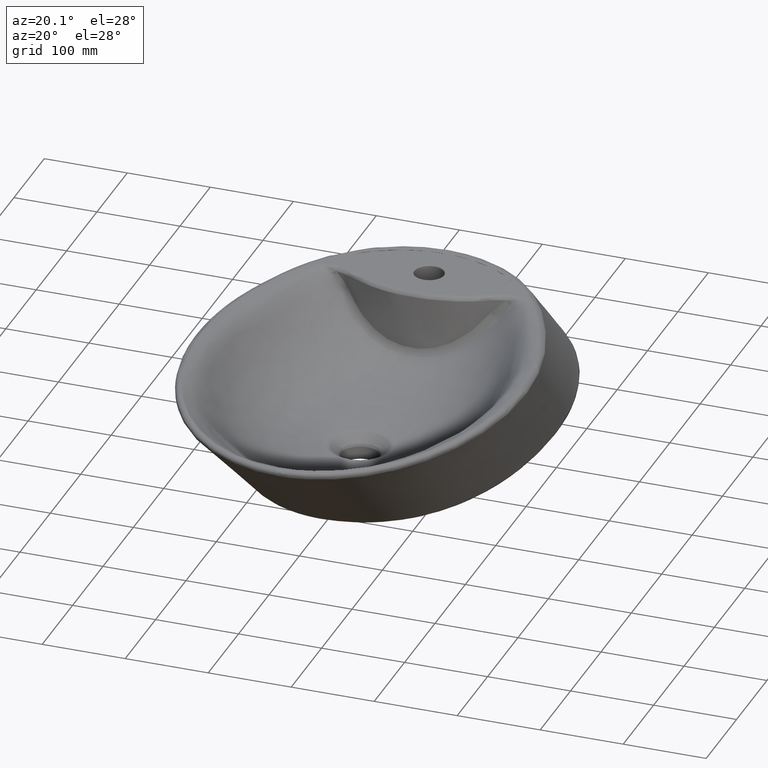
[diagram: clean part render]
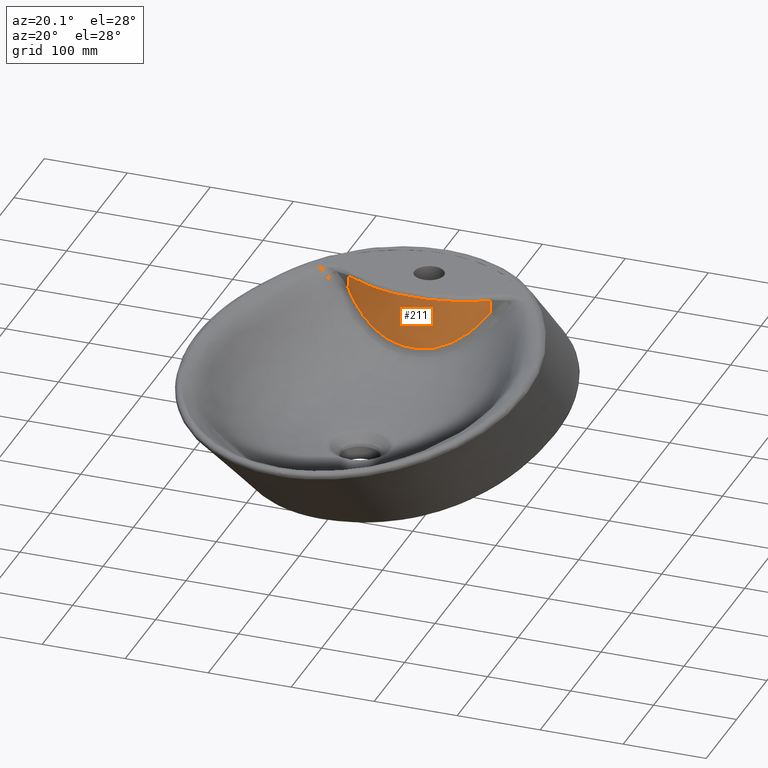
[diagram: same view with one face highlighted and labeled with its STEP entity id]
A machine part, auxiliary view. The second image highlights one B-rep face of the part: STEP entity #211.
In plain terms, the highlighted face is a freeform B-spline surface patch.
Its self-contained STEP definition (entity closure, byte-faithful):
#150=FACE_OUTER_BOUND('',#386,.T.);
#180=B_SPLINE_SURFACE_WITH_KNOTS('',3,3,((#9435,#9436,#9437,#9438,#9439,
#9440,#9441,#9442,#9443,#9444,#9445,#9446,#9447,#9448,#9449,#9450,#9451,
#9452,#9453,#9454,#9455,#9456),(#9457,#9458,#9459,#9460,#9461,#9462,#9463,
#9464,#9465,#9466,#9467,#9468,#9469,#9470,#9471,#9472,#9473,#9474,#9475,
#9476,#9477,#9478),(#9479,#9480,#9481,#9482,#9483,#9484,#9485,#9486,#9487,
#9488,#9489,#9490,#9491,#9492,#9493,#9494,#9495,#9496,#9497,#9498,#9499,
#9500),(#9501,#9502,#9503,#9504,#9505,#9506,#9507,#9508,#9509,#9510,#9511,
#9512,#9513,#9514,#9515,#9516,#9517,#9518,#9519,#9520,#9521,#9522)),
 .UNSPECIFIED.,.F.,.F.,.F.,(4,4),(4,3,3,3,3,3,3,4),(0.,1.),(0.,0.125,0.25,
0.375,0.5,0.75,0.875,1.),.UNSPECIFIED.);
#211=ADVANCED_FACE('',(#150),#180,.T.);
#274=B_SPLINE_CURVE_WITH_KNOTS('',3,(#8619,#8620,#8621,#8622,#8623,#8624,
#8625,#8626,#8627,#8628,#8629,#8630,#8631,#8632,#8633,#8634,#8635,#8636,
#8637,#8638,#8639,#8640,#8641,#8642),.UNSPECIFIED.,.F.,.F.,(4,2,2,2,2,2,
2,2,2,2,2,4),(0.,0.125,0.1875,0.25,0.375,0.5,0.5625,0.625,0.6875,0.75,0.875,
1.),.UNSPECIFIED.);
#288=B_SPLINE_CURVE_WITH_KNOTS('',3,(#9285,#9286,#9287,#9288,#9289,#9290,
#9291,#9292,#9293,#9294,#9295,#9296,#9297,#9298,#9299,#9300),
 .UNSPECIFIED.,.F.,.F.,(4,2,2,2,2,2,2,4),(0.,0.25,0.375,0.5,0.625,0.75,
0.875,1.),.UNSPECIFIED.);
#291=B_SPLINE_CURVE_WITH_KNOTS('',3,(#9411,#9412,#9413,#9414),
 .UNSPECIFIED.,.F.,.F.,(4,4),(0.,1.),.UNSPECIFIED.);
#292=B_SPLINE_CURVE_WITH_KNOTS('',3,(#9431,#9432,#9433,#9434),
 .UNSPECIFIED.,.F.,.F.,(4,4),(0.,1.),.UNSPECIFIED.);
#386=EDGE_LOOP('',(#507,#508,#509,#510));
#507=ORIENTED_EDGE('',*,*,#759,.T.);
#508=ORIENTED_EDGE('',*,*,#755,.F.);
#509=ORIENTED_EDGE('',*,*,#758,.F.);
#510=ORIENTED_EDGE('',*,*,#739,.F.);
#666=VERTEX_POINT('',#8412);
#669=VERTEX_POINT('',#8596);
#676=VERTEX_POINT('',#9249);
#677=VERTEX_POINT('',#9284);
#739=EDGE_CURVE('',#666,#669,#274,.T.);
#755=EDGE_CURVE('',#677,#676,#288,.T.);
#758=EDGE_CURVE('',#669,#677,#291,.T.);
#759=EDGE_CURVE('',#666,#676,#292,.T.);
#8412=CARTESIAN_POINT('',(85.9166907519791,195.433279379606,-22.5230328068596));
#8596=CARTESIAN_POINT('',(-86.0606331427223,195.565757845364,-22.3366717354371));
#8619=CARTESIAN_POINT('',(85.9147953114392,195.433190533544,-22.5215827383658));
#8620=CARTESIAN_POINT('',(81.0128164914021,192.060741934262,-29.1357793778019));
#8621=CARTESIAN_POINT('',(75.6398625977033,188.791889832469,-35.4386925413965));
#8622=CARTESIAN_POINT('',(66.7071536675145,184.198556317179,-44.0364478442551));
#8623=CARTESIAN_POINT('',(63.5792723704962,182.716969555483,-46.7656145354843));
#8624=CARTESIAN_POINT('',(56.9629404877645,179.881224744756,-51.9005405293639));
#8625=CARTESIAN_POINT('',(53.4465517654583,178.517372518416,-54.3213275969682));
#8626=CARTESIAN_POINT('',(42.4607558551033,174.758250399626,-60.8495810511839));
#8627=CARTESIAN_POINT('',(34.5943983275238,172.691401137356,-64.2448578815873));
#8628=CARTESIAN_POINT('',(17.5892054397852,169.79239327508,-68.9122149985293));
#8629=CARTESIAN_POINT('',(8.85213789524417,169.036367199481,-70.0740188459771));
#8630=CARTESIAN_POINT('',(-4.48867562576105,169.041926861156,-70.0686496912051));
#8631=CARTESIAN_POINT('',(-8.96287537759487,169.237733052548,-69.7654620828672));
#8632=CARTESIAN_POINT('',(-17.6854703729578,169.989162750742,-68.5878738115895));
#8633=CARTESIAN_POINT('',(-21.9736090151655,170.544195516173,-67.7140165570206));
#8634=CARTESIAN_POINT('',(-30.4053207792301,171.989760044142,-65.3911787681268));
#8635=CARTESIAN_POINT('',(-34.5660481487869,172.886667441338,-63.9294079486209));
#8636=CARTESIAN_POINT('',(-42.5540593541102,174.948307454382,-60.4985228609508));
#8637=CARTESIAN_POINT('',(-46.3531582386081,176.101155525187,-58.5491137467744));
#8638=CARTESIAN_POINT('',(-57.2303860002226,179.843894909137,-52.0531081305134));
#8639=CARTESIAN_POINT('',(-63.8343079740076,182.734715908593,-46.8247564057713));
#8640=CARTESIAN_POINT('',(-75.8254153672476,188.923965876492,-35.2492972252913));
#8641=CARTESIAN_POINT('',(-81.1642785362187,192.187050161437,-28.9610478864581));
#8642=CARTESIAN_POINT('',(-86.0608023946722,195.567132710437,-22.3374984679496));
#9249=CARTESIAN_POINT('',(85.3870075510743,196.342830779931,-7.43885506699536));
#9284=CARTESIAN_POINT('',(-85.5339955214564,196.463334021314,-7.4384891957534));
#9285=CARTESIAN_POINT('',(-85.5345515643741,196.465035839577,-7.43847952987951));
#9286=CARTESIAN_POINT('',(-72.5392604307001,188.914713593729,-7.43853629852176));
#9287=CARTESIAN_POINT('',(-58.848897015235,183.224198638437,-7.43859172062533));
#9288=CARTESIAN_POINT('',(-37.3043766043916,177.388144846282,-7.43865594888521));
#9289=CARTESIAN_POINT('',(-29.899563503193,175.897056083127,-7.43867778708584));
#9290=CARTESIAN_POINT('',(-15.1202283712547,173.923160098527,-7.43871589915214));
#9291=CARTESIAN_POINT('',(-7.72060490974395,173.426871137229,-7.43873381962054));
#9292=CARTESIAN_POINT('',(7.09817951788709,173.397165217282,-7.43876603798522));
#9293=CARTESIAN_POINT('',(14.5173372657823,173.863589654,-7.43878032781522));
#9294=CARTESIAN_POINT('',(29.3758407520156,175.791368595287,-7.43880500422516));
#9295=CARTESIAN_POINT('',(36.7906741979638,177.257559701687,-7.43881528995363));
#9296=CARTESIAN_POINT('',(51.2385682654779,181.119852563946,-7.43883262928076));
#9297=CARTESIAN_POINT('',(58.305358792626,183.516366902539,-7.43883889643235));
#9298=CARTESIAN_POINT('',(72.1243713874021,189.240887815835,-7.43884739561268));
#9299=CARTESIAN_POINT('',(78.8825690486228,192.576648787829,-7.43884945355009));
#9300=CARTESIAN_POINT('',(85.3854985626265,196.34286616603,-7.43884997495388));
#9411=CARTESIAN_POINT('',(-86.0578975124502,195.562830196076,-22.3365914128201));
#9412=CARTESIAN_POINT('',(-85.8830770845654,195.86243272158,-17.3705297918321));
#9413=CARTESIAN_POINT('',(-85.7082566566791,196.162035247084,-12.404468170844));
#9414=CARTESIAN_POINT('',(-85.5334362287912,196.461637772587,-7.43840654985596));
#9431=CARTESIAN_POINT('',(85.9129808726311,195.43201842287,-22.5230863963227));
#9432=CARTESIAN_POINT('',(85.7371541319189,195.735633135491,-17.4950274912221));
#9433=CARTESIAN_POINT('',(85.5613273912067,196.039247848113,-12.4669685861215));
#9434=CARTESIAN_POINT('',(85.3855006504945,196.342862560734,-7.4389096810209));
#9435=CARTESIAN_POINT('',(-86.4492251899212,197.031025947605,-7.05932791144801));
#9436=CARTESIAN_POINT('',(-79.9520748909669,193.200995060961,-7.05963464581566));
#9437=CARTESIAN_POINT('',(-73.1762459348511,189.791978962293,-7.05990723571506));
#9438=CARTESIAN_POINT('',(-66.2282579050826,186.857211150592,-7.06014203172208));
#9439=CARTESIAN_POINT('',(-59.280269875314,183.922443338891,-7.0603768277291));
#9440=CARTESIAN_POINT('',(-52.1298241525076,181.449330185391,-7.06057046081049));
#9441=CARTESIAN_POINT('',(-44.8459807499496,179.458816533047,-7.06073017743787));
#9442=CARTESIAN_POINT('',(-37.5621373473916,177.468302880704,-7.06088989406526));
#9443=CARTESIAN_POINT('',(-30.1542091839407,175.964816615463,-7.06100891540251));
#9444=CARTESIAN_POINT('',(-22.6633748297786,174.957275287282,-7.06108862734877));
#9445=CARTESIAN_POINT('',(-15.1725404756165,173.9497339591,-7.06116833929504));
#9446=CARTESIAN_POINT('',(-7.6457929574371,173.443560641987,-7.06120698458366));
#9447=CARTESIAN_POINT('',(-0.0930436371209194,173.438072462575,-7.06120535533319));
#9448=CARTESIAN_POINT('',(15.0124550035115,173.42709610375,-7.06120209683225));
#9449=CARTESIAN_POINT('',(30.1269724630522,175.441058164939,-7.06103643822533));
#9450=CARTESIAN_POINT('',(44.6802257050233,179.395427092109,-7.06071312467392));
#9451=CARTESIAN_POINT('',(51.9568523260089,181.372611555694,-7.06055146789821));
#9452=CARTESIAN_POINT('',(59.1232506624896,183.841190968467,-7.06035052577435));
#9453=CARTESIAN_POINT('',(66.0801262906753,186.76852281167,-7.06011288071097));
#9454=CARTESIAN_POINT('',(73.0370019188611,189.695854654873,-7.0598752356476));
#9455=CARTESIAN_POINT('',(79.7867299012015,193.079660304853,-7.05960030396211));
#9456=CARTESIAN_POINT('',(86.3029917539542,196.908777314027,-7.05928961002301));
#9457=CARTESIAN_POINT('',(-87.2044604628049,195.755270469033,-28.2826718924263));
#9458=CARTESIAN_POINT('',(-80.6506868936486,191.89186003943,-28.2829870583634));
#9459=CARTESIAN_POINT('',(-73.8158131677968,188.453137123897,-28.2832677905525));
#9460=CARTESIAN_POINT('',(-66.8072721212536,185.492791830446,-28.2835103139673));
#9461=CARTESIAN_POINT('',(-59.7987310747103,182.532446536996,-28.2837528373822));
#9462=CARTESIAN_POINT('',(-52.585971393982,180.037780469523,-28.2839538150069));
#9463=CARTESIAN_POINT('',(-45.2386550329282,178.029920660145,-28.2841204256627));
#9464=CARTESIAN_POINT('',(-37.8913386718745,176.022060850766,-28.2842870363185));
#9465=CARTESIAN_POINT('',(-30.4188408676306,174.505469228037,-28.2844124922335));
#9466=CARTESIAN_POINT('',(-22.862729187867,173.489147520305,-28.2844981398974));
#9467=CARTESIAN_POINT('',(-15.3066175081034,172.472825812573,-28.2845837875613));
#9468=CARTESIAN_POINT('',(-7.7142653380338,171.962240209215,-28.2846278361433));
#9469=CARTESIAN_POINT('',(-0.09569920911113,171.95670386383,-28.2846310697428));
#9470=CARTESIAN_POINT('',(15.1414330487343,171.94563117306,-28.2846375369417));
#9471=CARTESIAN_POINT('',(30.3876787413622,173.977143620768,-28.2844793625039));
#9472=CARTESIAN_POINT('',(45.0677642314929,177.965974485677,-28.2841610169004));
#9473=CARTESIAN_POINT('',(52.4078069765582,179.960389918131,-28.2840018440987));
#9474=CARTESIAN_POINT('',(59.636660204265,182.450482956418,-28.2838027693285));
#9475=CARTESIAN_POINT('',(66.6541612720742,185.403324677122,-28.2835663474015));
#9476=CARTESIAN_POINT('',(73.6716623398835,188.356166397826,-28.2833299254744));
#9477=CARTESIAN_POINT('',(80.4802214078351,191.769465337609,-28.2830555769539));
#9478=CARTESIAN_POINT('',(87.0532681166715,195.631950321832,-28.2827448214809));
#9479=CARTESIAN_POINT('',(-87.9596957356885,194.479514990461,-49.5060158734047));
#9480=CARTESIAN_POINT('',(-81.3492988963303,190.582725017899,-49.5063394709111));
#9481=CARTESIAN_POINT('',(-74.4553804007427,187.1142952855,-49.50662834539));
#9482=CARTESIAN_POINT('',(-67.3862863374246,184.1283725103,-49.5068785962126));
#9483=CARTESIAN_POINT('',(-60.3171922741065,181.1424497351,-49.5071288470352));
#9484=CARTESIAN_POINT('',(-53.0421186354563,178.626230753656,-49.5073371692033));
#9485=CARTESIAN_POINT('',(-45.6313293159072,176.601024787243,-49.5075106738875));
#9486=CARTESIAN_POINT('',(-38.220539996358,174.575818820829,-49.5076841785717));
#9487=CARTESIAN_POINT('',(-30.6834725513205,173.04612184061,-49.5078160690646));
#9488=CARTESIAN_POINT('',(-23.0620835459555,172.021019753328,-49.507907652446));
#9489=CARTESIAN_POINT('',(-15.4406945405904,170.995917666046,-49.5079992358275));
#9490=CARTESIAN_POINT('',(-7.78273771863108,170.480919776443,-49.508048687703));
#9491=CARTESIAN_POINT('',(-0.0983547811013981,170.475335265086,-49.5080567841524));
#9492=CARTESIAN_POINT('',(15.270411093958,170.46416624237,-49.5080729770512));
#9493=CARTESIAN_POINT('',(30.6483850196724,172.513229076598,-49.5079222867825));
#9494=CARTESIAN_POINT('',(45.4553027579623,176.536521879245,-49.5076089091269));
#9495=CARTESIAN_POINT('',(52.8587616271072,178.548168280568,-49.5074522202991));
#9496=CARTESIAN_POINT('',(60.1500697460399,181.059774944369,-49.5072550128825));
#9497=CARTESIAN_POINT('',(67.2281962534733,184.038126542575,-49.5070198140919));
#9498=CARTESIAN_POINT('',(74.3063227609067,187.01647814078,-49.5067846153013));
#9499=CARTESIAN_POINT('',(81.1737129144694,190.459270370365,-49.5065108499457));
#9500=CARTESIAN_POINT('',(87.8035444793889,194.355123329637,-49.5062000329388));
#9501=CARTESIAN_POINT('',(-88.7149310085722,193.203759511888,-70.729359854383));
#9502=CARTESIAN_POINT('',(-82.0479108990119,189.273589996369,-70.7296918834588));
#9503=CARTESIAN_POINT('',(-75.0949476336887,185.775453447103,-70.7299889002274));
#9504=CARTESIAN_POINT('',(-67.9653005535956,182.763953190154,-70.7302468784579));
#9505=CARTESIAN_POINT('',(-60.8356534735025,179.752452933205,-70.7305048566883));
#9506=CARTESIAN_POINT('',(-53.4982658769305,177.214681037789,-70.7307205233997));
#9507=CARTESIAN_POINT('',(-46.0240035988863,175.17212891434,-70.7309009221123));
#9508=CARTESIAN_POINT('',(-38.5497413208422,173.129576790892,-70.731081320825));
#9509=CARTESIAN_POINT('',(-30.9481042350102,171.586774453184,-70.7312196458956));
#9510=CARTESIAN_POINT('',(-23.261437904044,170.552891986351,-70.7313171649947));
#9511=CARTESIAN_POINT('',(-15.5747715730778,169.519009519519,-70.7314146840938));
#9512=CARTESIAN_POINT('',(-7.85121009922891,168.999599343672,-70.7314695392627));
#9513=CARTESIAN_POINT('',(-0.101010353091674,168.993966666341,-70.731482498562));
#9514=CARTESIAN_POINT('',(15.3993891391828,168.98270131168,-70.7315084171607));
#9515=CARTESIAN_POINT('',(30.9090912979832,171.049314532427,-70.731365211061));
#9516=CARTESIAN_POINT('',(45.8428412844315,175.107069272813,-70.7310568013534));
#9517=CARTESIAN_POINT('',(53.3097162776557,177.135946643005,-70.7309025964995));
#9518=CARTESIAN_POINT('',(60.6634792878142,179.66906693232,-70.7307072564367));
#9519=CARTESIAN_POINT('',(67.8022312348725,182.672928408027,-70.7304732807824));
#9520=CARTESIAN_POINT('',(74.9409831819307,185.676789883734,-70.7302393051281));
#9521=CARTESIAN_POINT('',(81.8672044211042,189.149075403122,-70.7299661229375));
#9522=CARTESIAN_POINT('',(88.5538208421064,193.078296337442,-70.7296552443967));